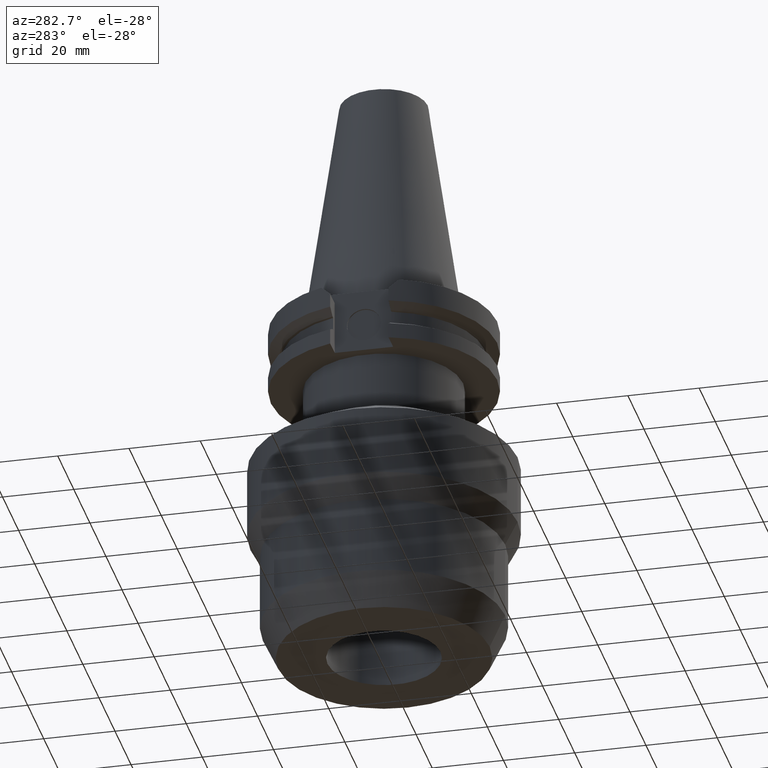
[diagram: clean part render]
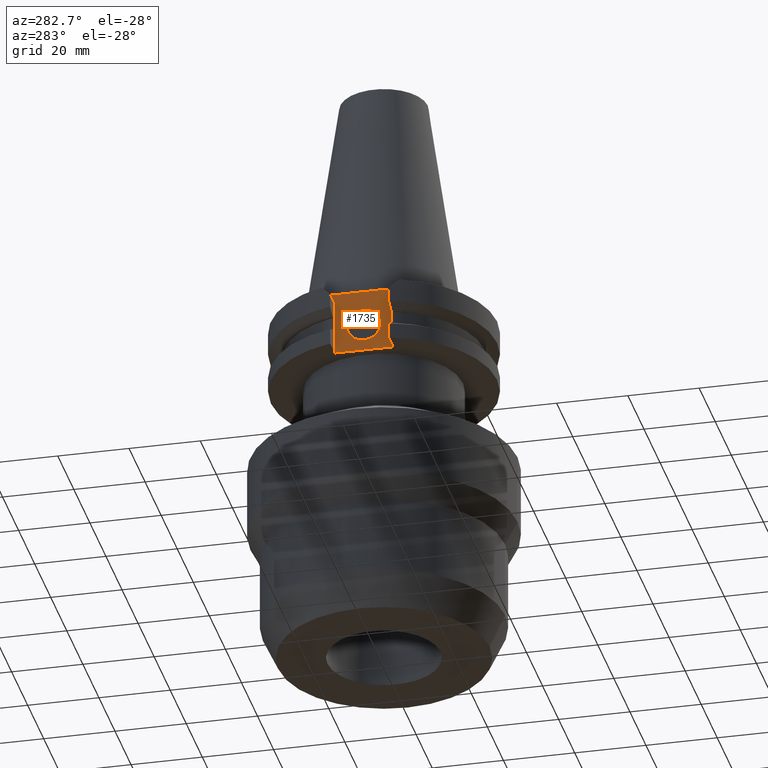
[diagram: same view with one face highlighted and labeled with its STEP entity id]
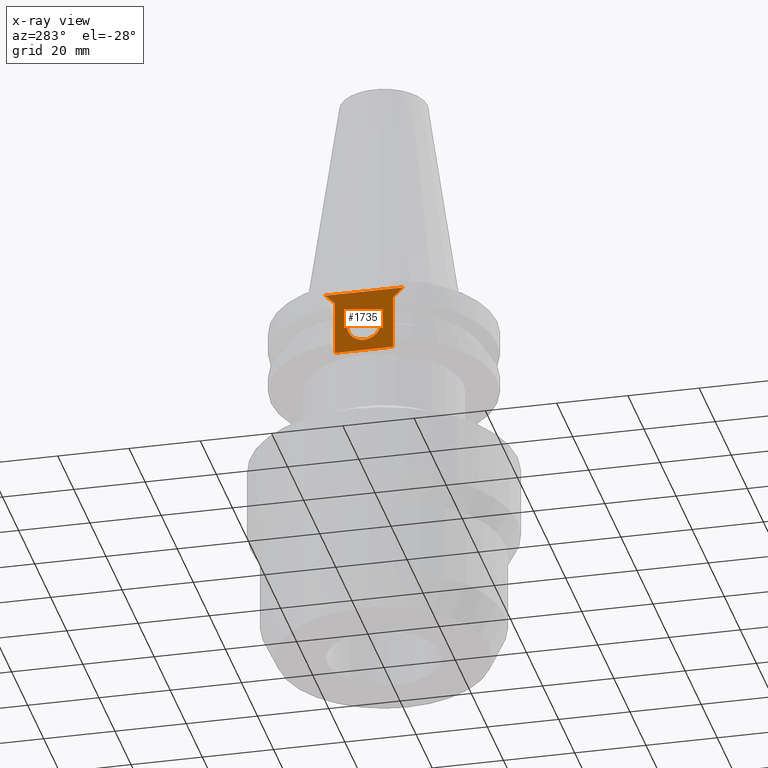
[diagram: x-ray of the same camera — body ghosted, the highlighted face saturated]
A machine part, auxiliary view. The second image highlights one B-rep face of the part: STEP entity #1735.
The next image is the same camera in x-ray: the body ghosted, the highlighted face saturated — about 0% of this face is hidden behind the body in this view.
In plain terms, the highlighted planar face has unit normal (1, 0, 0).
Its self-contained STEP definition (entity closure, byte-faithful):
#221=DIRECTION('',(0.E0,-1.E0,0.E0));
#222=VECTOR('',#221,1.638E1);
#223=CARTESIAN_POINT('',(-2.498E1,8.19E0,-1.905E1));
#224=LINE('',#223,#222);
#328=DIRECTION('',(0.E0,7.071067811865E-1,7.071067811866E-1));
#329=VECTOR('',#328,3.818376618407E0);
#330=CARTESIAN_POINT('',(-2.498E1,8.19E0,-3.7E0));
#331=LINE('',#330,#329);
#335=DIRECTION('',(0.E0,-1.E0,0.E0));
#336=VECTOR('',#335,2.178E1);
#337=CARTESIAN_POINT('',(-2.498E1,1.089E1,-9.999999999999E-1));
#338=LINE('',#337,#336);
#342=DIRECTION('',(0.E0,7.071067811865E-1,-7.071067811866E-1));
#343=VECTOR('',#342,3.818376618407E0);
#344=CARTESIAN_POINT('',(-2.498E1,-1.089E1,-9.999999999999E-1));
#345=LINE('',#344,#343);
#349=CARTESIAN_POINT('',(-2.498E1,0.E0,-1.118E1));
#350=DIRECTION('',(-1.E0,0.E0,0.E0));
#351=DIRECTION('',(0.E0,1.E0,0.E0));
#352=AXIS2_PLACEMENT_3D('',#349,#350,#351);
#357=CARTESIAN_POINT('',(-2.498E1,0.E0,-1.118E1));
#358=DIRECTION('',(-1.E0,0.E0,0.E0));
#359=DIRECTION('',(0.E0,-1.E0,0.E0));
#360=AXIS2_PLACEMENT_3D('',#357,#358,#359);
#396=DIRECTION('',(0.E0,0.E0,-1.E0));
#397=VECTOR('',#396,1.535E1);
#398=CARTESIAN_POINT('',(-2.498E1,8.19E0,-3.7E0));
#399=LINE('',#398,#397);
#650=DIRECTION('',(0.E0,0.E0,1.E0));
#651=VECTOR('',#650,1.535E1);
#652=CARTESIAN_POINT('',(-2.498E1,-8.19E0,-1.905E1));
#653=LINE('',#652,#651);
#1358=CARTESIAN_POINT('',(-2.498E1,8.19E0,-1.905E1));
#1359=VERTEX_POINT('',#1358);
#1360=CARTESIAN_POINT('',(-2.498E1,-8.19E0,-1.905E1));
#1361=VERTEX_POINT('',#1360);
#1398=CARTESIAN_POINT('',(-2.498E1,-8.19E0,-3.7E0));
#1399=VERTEX_POINT('',#1398);
#1411=CARTESIAN_POINT('',(-2.498E1,8.19E0,-3.7E0));
#1412=VERTEX_POINT('',#1411);
#1413=CARTESIAN_POINT('',(-2.498E1,1.089E1,-9.999999999999E-1));
#1414=VERTEX_POINT('',#1413);
#1415=CARTESIAN_POINT('',(-2.498E1,-1.089E1,-9.999999999999E-1));
#1416=VERTEX_POINT('',#1415);
#1417=CARTESIAN_POINT('',(-2.498E1,4.7625E0,-1.118E1));
#1418=CARTESIAN_POINT('',(-2.498E1,-4.7625E0,-1.118E1));
#1419=VERTEX_POINT('',#1417);
#1420=VERTEX_POINT('',#1418);
#1713=CARTESIAN_POINT('',(-2.498E1,0.E0,0.E0));
#1714=DIRECTION('',(1.E0,0.E0,0.E0));
#1715=DIRECTION('',(0.E0,0.E0,-1.E0));
#1716=AXIS2_PLACEMENT_3D('',#1713,#1714,#1715);
#1717=PLANE('',#1716);
#1718=ORIENTED_EDGE('',*,*,#1621,.F.);
#1720=ORIENTED_EDGE('',*,*,#1719,.F.);
#1721=ORIENTED_EDGE('',*,*,#1705,.T.);
#1722=ORIENTED_EDGE('',*,*,#1571,.T.);
#1724=ORIENTED_EDGE('',*,*,#1723,.T.);
#1726=ORIENTED_EDGE('',*,*,#1725,.F.);
#1727=EDGE_LOOP('',(#1718,#1720,#1721,#1722,#1724,#1726));
#1728=FACE_OUTER_BOUND('',#1727,.F.);
#1730=ORIENTED_EDGE('',*,*,#1729,.T.);
#1732=ORIENTED_EDGE('',*,*,#1731,.T.);
#1733=EDGE_LOOP('',(#1730,#1732));
#1734=FACE_BOUND('',#1733,.F.);
#353=CIRCLE('',#352,4.7625E0);
#361=CIRCLE('',#360,4.7625E0);
#1571=EDGE_CURVE('',#1414,#1416,#338,.T.);
#1621=EDGE_CURVE('',#1359,#1361,#224,.T.);
#1705=EDGE_CURVE('',#1412,#1414,#331,.T.);
#1719=EDGE_CURVE('',#1412,#1359,#399,.T.);
#1723=EDGE_CURVE('',#1416,#1399,#345,.T.);
#1725=EDGE_CURVE('',#1361,#1399,#653,.T.);
#1729=EDGE_CURVE('',#1419,#1420,#353,.T.);
#1731=EDGE_CURVE('',#1420,#1419,#361,.T.);
#1735=ADVANCED_FACE('',(#1728,#1734),#1717,.F.);